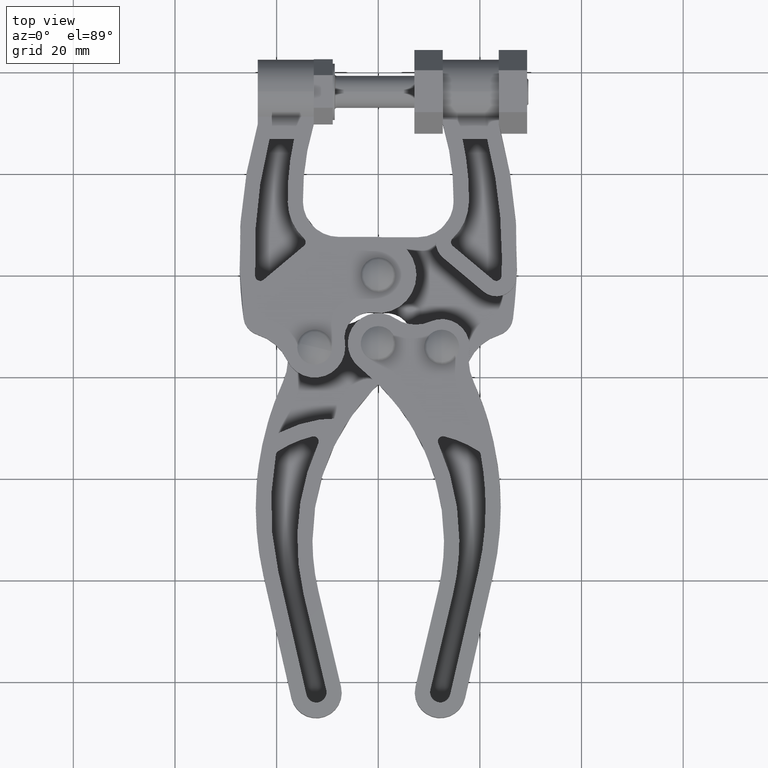
[diagram: clean part render]
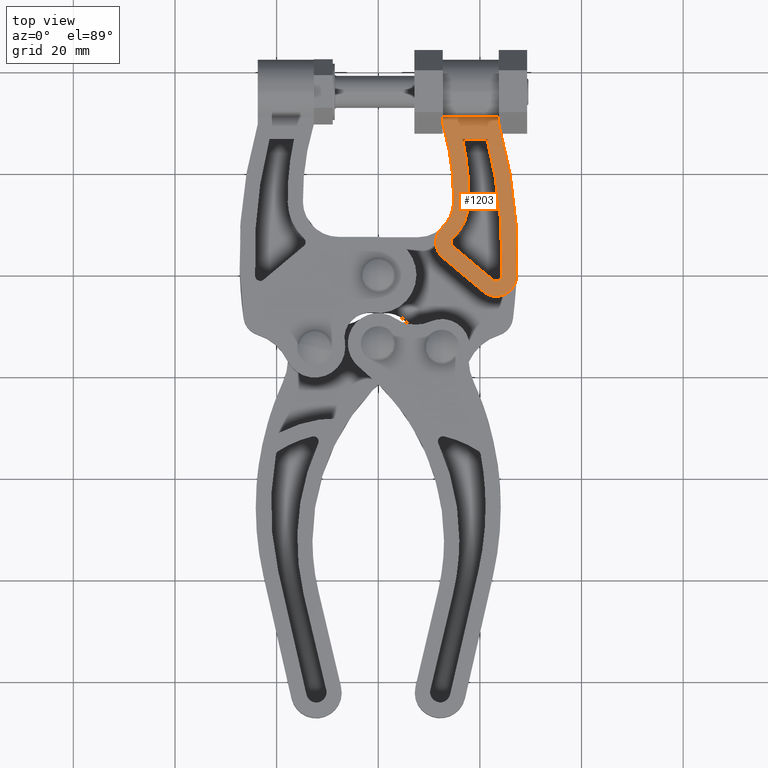
[diagram: same view with one face highlighted and labeled with its STEP entity id]
A machine part, top view. The second image highlights one B-rep face of the part: STEP entity #1203.
In plain terms, the highlighted planar face has unit normal (0, 0, 1).
Its self-contained STEP definition (entity closure, byte-faithful):
#196 = EDGE_CURVE ( 'NONE', #7502, #6575, #1760, .T. ) ;
#266 = CARTESIAN_POINT ( 'NONE',  ( 21.40435118229978800, 26.74999999999995400, 3.999999999999999100 ) ) ;
#352 = CARTESIAN_POINT ( 'NONE',  ( 23.69999999999999200, 31.08876262785325300, 3.999999999999997300 ) ) ;
#413 = CARTESIAN_POINT ( 'NONE',  ( 11.31204259089657600, 6.440179709279433100, 3.999999999999999100 ) ) ;
#433 = AXIS2_PLACEMENT_3D ( 'NONE', #1792, #3132, #3778 ) ;
#591 = DIRECTION ( 'NONE',  ( -0.0000000000000000000, -0.0000000000000000000, -1.000000000000000000 ) ) ;
#690 = VERTEX_POINT ( 'NONE', #1471 ) ;
#767 = DIRECTION ( 'NONE',  ( -0.0000000000000000000, 0.0000000000000000000, 1.000000000000000000 ) ) ;
#770 = CARTESIAN_POINT ( 'NONE',  ( 16.58195092157478000, 26.74999999999995400, 3.999999999999999100 ) ) ;
#827 = ORIENTED_EDGE ( 'NONE', *, *, #5734, .F. ) ;
#842 = DIRECTION ( 'NONE',  ( -1.000000000000000000, -0.0000000000000000000, -0.0000000000000000000 ) ) ;
#880 = DIRECTION ( 'NONE',  ( -0.0000000000000000000, -0.0000000000000000000, -1.000000000000000000 ) ) ;
#919 = CARTESIAN_POINT ( 'NONE',  ( 12.69999999999999600, 30.11010642721110700, 3.999999999999999100 ) ) ;
#928 = AXIS2_PLACEMENT_3D ( 'NONE', #6482, #2465, #7155 ) ;
#974 = DIRECTION ( 'NONE',  ( 1.000000000000000000, 0.0000000000000000000, 0.0000000000000000000 ) ) ;
#1047 = CARTESIAN_POINT ( 'NONE',  ( 39.12898240549357400, -18.76623486224927000, 3.999999999999999100 ) ) ;
#1088 = LINE ( 'NONE', #1047, #4835 ) ;
#1179 = EDGE_CURVE ( 'NONE', #1793, #3804, #1958, .T. ) ;
#1201 = AXIS2_PLACEMENT_3D ( 'NONE', #1517, #1533, #7670 ) ;
#1203 = ADVANCED_FACE ( 'NONE', ( #1754, #5092 ), #2249, .T. ) ;
#1260 = VERTEX_POINT ( 'NONE', #6022 ) ;
#1265 = CIRCLE ( 'NONE', #2156, 10.00000000000000200 ) ;
#1267 = AXIS2_PLACEMENT_3D ( 'NONE', #7608, #1620, #1596 ) ;
#1287 = VERTEX_POINT ( 'NONE', #8198 ) ;
#1295 = DIRECTION ( 'NONE',  ( -0.0000000000000000000, -1.000000000000000000, -0.0000000000000000000 ) ) ;
#1343 = CARTESIAN_POINT ( 'NONE',  ( -67.70000000000001700, 3.799999999999989200, 3.999999999999999100 ) ) ;
#1348 = EDGE_CURVE ( 'NONE', #1260, #6063, #6768, .T. ) ;
#1456 = ORIENTED_EDGE ( 'NONE', *, *, #5443, .F. ) ;
#1464 = VERTEX_POINT ( 'NONE', #919 ) ;
#1471 = CARTESIAN_POINT ( 'NONE',  ( 24.22356094238521600, -0.2431229625375671600, 3.999999999999999100 ) ) ;
#1487 = VECTOR ( 'NONE', #4297, 1000.000000000000000 ) ;
#1517 = CARTESIAN_POINT ( 'NONE',  ( -67.70000000000001700, 3.799999999999989200, 3.999999999999999100 ) ) ;
#1533 = DIRECTION ( 'NONE',  ( 0.0000000000000000000, 0.0000000000000000000, 1.000000000000000000 ) ) ;
#1596 = DIRECTION ( 'NONE',  ( 1.000000000000000000, 0.0000000000000000000, -0.0000000000000000000 ) ) ;
#1620 = DIRECTION ( 'NONE',  ( 0.0000000000000000000, 0.0000000000000000000, 1.000000000000000000 ) ) ;
#1678 = EDGE_CURVE ( 'NONE', #6063, #7389, #4443, .T. ) ;
#1684 = EDGE_CURVE ( 'NONE', #5720, #4061, #4222, .T. ) ;
#1708 = ORIENTED_EDGE ( 'NONE', *, *, #1981, .F. ) ;
#1712 = LINE ( 'NONE', #6645, #5055 ) ;
#1747 = VERTEX_POINT ( 'NONE', #2501 ) ;
#1754 = FACE_BOUND ( 'NONE', #8630, .T. ) ;
#1760 = CIRCLE ( 'NONE', #1201, 92.01243339689810300 ) ;
#1792 = CARTESIAN_POINT ( 'NONE',  ( -35.16645485097053800, 15.29999999999998800, 3.999999999999999100 ) ) ;
#1793 = VERTEX_POINT ( 'NONE', #2418 ) ;
#1799 = ORIENTED_EDGE ( 'NONE', *, *, #4300, .T. ) ;
#1849 = DIRECTION ( 'NONE',  ( -0.0000000000000000000, -0.0000000000000000000, -1.000000000000000000 ) ) ;
#1924 = CARTESIAN_POINT ( 'NONE',  ( 21.40435118229978800, 26.74999999999995400, 3.999999999999999100 ) ) ;
#1958 = CIRCLE ( 'NONE', #6804, 4.000000000000000000 ) ;
#1981 = EDGE_CURVE ( 'NONE', #8073, #3063, #5072, .T. ) ;
#1994 = AXIS2_PLACEMENT_3D ( 'NONE', #6742, #2742, #7407 ) ;
#2015 = DIRECTION ( 'NONE',  ( 1.000000000000000000, 0.0000000000000000000, 0.0000000000000000000 ) ) ;
#2095 = ORIENTED_EDGE ( 'NONE', *, *, #196, .F. ) ;
#2137 = DIRECTION ( 'NONE',  ( 0.0000000000000000000, 0.0000000000000000000, 1.000000000000000000 ) ) ;
#2156 = AXIS2_PLACEMENT_3D ( 'NONE', #2354, #7048, #3037 ) ;
#2203 = CIRCLE ( 'NONE', #928, 95.01243339689810300 ) ;
#2209 = VERTEX_POINT ( 'NONE', #5721 ) ;
#2249 = PLANE ( 'NONE',  #1267 ) ;
#2261 = EDGE_CURVE ( 'NONE', #4334, #1287, #5474, .T. ) ;
#2280 = DIRECTION ( 'NONE',  ( 0.0000000000000000000, 0.0000000000000000000, 1.000000000000000000 ) ) ;
#2309 = LINE ( 'NONE', #1924, #5891 ) ;
#2354 = CARTESIAN_POINT ( 'NONE',  ( 7.826102644484418400, 14.49999999999999100, 3.999999999999999100 ) ) ;
#2377 = CARTESIAN_POINT ( 'NONE',  ( 12.69999999999999600, 31.08876262785325300, 3.999999999999999100 ) ) ;
#2418 = CARTESIAN_POINT ( 'NONE',  ( 12.58988261038306600, 9.371023451359638700, 3.999999999999999100 ) ) ;
#2465 = DIRECTION ( 'NONE',  ( 0.0000000000000000000, 0.0000000000000000000, 1.000000000000000000 ) ) ;
#2466 = VECTOR ( 'NONE', #4589, 1000.000000000000000 ) ;
#2501 = CARTESIAN_POINT ( 'NONE',  ( 17.82437182947394700, 14.31395348837207800, 3.999999999999999100 ) ) ;
#2636 = VERTEX_POINT ( 'NONE', #3629 ) ;
#2679 = DIRECTION ( 'NONE',  ( -0.0000000000000000000, -1.000000000000000000, -0.0000000000000000000 ) ) ;
#2680 = VECTOR ( 'NONE', #3929, 1000.000000000000100 ) ;
#2742 = DIRECTION ( 'NONE',  ( 0.0000000000000000000, 0.0000000000000000000, 1.000000000000000000 ) ) ;
#2965 = CARTESIAN_POINT ( 'NONE',  ( 15.31204259089657600, 6.440179709279433100, 3.999999999999999100 ) ) ;
#3025 = CARTESIAN_POINT ( 'NONE',  ( 14.66925498121004300, 5.674135266160449800, 3.999999999999999100 ) ) ;
#3030 = DIRECTION ( 'NONE',  ( 0.7660444431189813400, -0.6427876096865353700, 0.0000000000000000000 ) ) ;
#3037 = DIRECTION ( 'NONE',  ( 1.000000000000000000, 0.0000000000000000000, 0.0000000000000000000 ) ) ;
#3063 = VERTEX_POINT ( 'NONE', #7238 ) ;
#3106 = ORIENTED_EDGE ( 'NONE', *, *, #4570, .F. ) ;
#3132 = DIRECTION ( 'NONE',  ( -0.0000000000000000000, -0.0000000000000000000, -1.000000000000000000 ) ) ;
#3263 = LINE ( 'NONE', #6309, #1487 ) ;
#3421 = ORIENTED_EDGE ( 'NONE', *, *, #1678, .F. ) ;
#3629 = CARTESIAN_POINT ( 'NONE',  ( 20.65337633672607600, -3.263360624169908200, 3.999999999999999100 ) ) ;
#3714 = EDGE_CURVE ( 'NONE', #1287, #1793, #4703, .T. ) ;
#3771 = AXIS2_PLACEMENT_3D ( 'NONE', #6150, #2137, #6827 ) ;
#3777 = EDGE_CURVE ( 'NONE', #7389, #690, #6074, .T. ) ;
#3778 = DIRECTION ( 'NONE',  ( 1.000000000000000000, 0.0000000000000000000, 0.0000000000000000000 ) ) ;
#3804 = VERTEX_POINT ( 'NONE', #413 ) ;
#3901 = CARTESIAN_POINT ( 'NONE',  ( 23.69999999999999200, 42.45099999999999300, 3.999999999999999100 ) ) ;
#3929 = DIRECTION ( 'NONE',  ( 0.7660444431189812300, -0.6427876096865353700, 0.0000000000000000000 ) ) ;
#3930 = ORIENTED_EDGE ( 'NONE', *, *, #1348, .F. ) ;
#4061 = VERTEX_POINT ( 'NONE', #8581 ) ;
#4139 = ORIENTED_EDGE ( 'NONE', *, *, #5748, .T. ) ;
#4222 = LINE ( 'NONE', #3901, #2466 ) ;
#4278 = ORIENTED_EDGE ( 'NONE', *, *, #4471, .T. ) ;
#4297 = DIRECTION ( 'NONE',  ( -0.0000000000000000000, -1.000000000000000000, -0.0000000000000000000 ) ) ;
#4300 = EDGE_CURVE ( 'NONE', #7735, #1464, #3263, .T. ) ;
#4334 = VERTEX_POINT ( 'NONE', #8318 ) ;
#4396 = CIRCLE ( 'NONE', #3771, 4.000000000000000000 ) ;
#4443 = LINE ( 'NONE', #4623, #2680 ) ;
#4471 = EDGE_CURVE ( 'NONE', #2209, #4061, #2203, .T. ) ;
#4493 = CARTESIAN_POINT ( 'NONE',  ( -35.16645485097053800, 15.29999999999998800, 3.999999999999999100 ) ) ;
#4495 = LINE ( 'NONE', #4846, #6080 ) ;
#4570 = EDGE_CURVE ( 'NONE', #3063, #1747, #7862, .T. ) ;
#4589 = DIRECTION ( 'NONE',  ( -0.0000000000000000000, -1.000000000000000000, -0.0000000000000000000 ) ) ;
#4594 = CARTESIAN_POINT ( 'NONE',  ( -35.16645485097053800, 15.29999999999998800, 3.999999999999999100 ) ) ;
#4623 = CARTESIAN_POINT ( 'NONE',  ( 14.66925498121004300, 5.674135266160449800, 3.999999999999999100 ) ) ;
#4664 = CARTESIAN_POINT ( 'NONE',  ( 22.58173916578568100, -0.9652272948129595500, 3.999999999999999100 ) ) ;
#4684 = AXIS2_PLACEMENT_3D ( 'NONE', #1343, #6026, #2015 ) ;
#4695 = EDGE_CURVE ( 'NONE', #2636, #2209, #7532, .T. ) ;
#4703 = CIRCLE ( 'NONE', #4919, 7.000000000000000900 ) ;
#4765 = CARTESIAN_POINT ( 'NONE',  ( 23.22452677547221700, -0.1991828516939783700, 3.999999999999999100 ) ) ;
#4795 = ORIENTED_EDGE ( 'NONE', *, *, #1179, .T. ) ;
#4835 = VECTOR ( 'NONE', #3030, 1000.000000000000000 ) ;
#4846 = CARTESIAN_POINT ( 'NONE',  ( -0.03648441340261057700, 31.08876262785325300, 3.999999999999999100 ) ) ;
#4867 = ORIENTED_EDGE ( 'NONE', *, *, #4695, .T. ) ;
#4872 = ORIENTED_EDGE ( 'NONE', *, *, #1684, .F. ) ;
#4875 = EDGE_LOOP ( 'NONE', ( #5113, #4795, #6229, #6383, #4867, #4278, #4872, #6964, #5292, #1799, #4139, #5997 ) ) ;
#4919 = AXIS2_PLACEMENT_3D ( 'NONE', #5641, #880, #974 ) ;
#5012 = VECTOR ( 'NONE', #2679, 1000.000000000000000 ) ;
#5055 = VECTOR ( 'NONE', #1295, 1000.000000000000000 ) ;
#5072 = CIRCLE ( 'NONE', #7936, 53.00000000000000700 ) ;
#5092 = FACE_OUTER_BOUND ( 'NONE', #4875, .T. ) ;
#5113 = ORIENTED_EDGE ( 'NONE', *, *, #3714, .T. ) ;
#5223 = CIRCLE ( 'NONE', #4684, 92.01243339689810300 ) ;
#5276 = DIRECTION ( 'NONE',  ( 1.000000000000000000, 0.0000000000000000000, 0.0000000000000000000 ) ) ;
#5292 = ORIENTED_EDGE ( 'NONE', *, *, #5311, .T. ) ;
#5311 = EDGE_CURVE ( 'NONE', #5442, #7735, #4495, .T. ) ;
#5338 = CARTESIAN_POINT ( 'NONE',  ( 12.69999999999999600, 42.45099999999999300, 3.999999999999999100 ) ) ;
#5441 = DIRECTION ( 'NONE',  ( 1.000000000000000000, 0.0000000000000000000, 0.0000000000000000000 ) ) ;
#5442 = VERTEX_POINT ( 'NONE', #352 ) ;
#5443 = EDGE_CURVE ( 'NONE', #1747, #1260, #1265, .T. ) ;
#5474 = CIRCLE ( 'NONE', #433, 50.00000000000000000 ) ;
#5481 = CARTESIAN_POINT ( 'NONE',  ( 24.31243339689809300, 3.799999999999989200, 3.999999999999999100 ) ) ;
#5594 = DIRECTION ( 'NONE',  ( 1.000000000000000000, 0.0000000000000000000, 0.0000000000000000000 ) ) ;
#5641 = CARTESIAN_POINT ( 'NONE',  ( 7.826102644484418400, 14.49999999999999100, 3.999999999999999100 ) ) ;
#5676 = CARTESIAN_POINT ( 'NONE',  ( 23.22452677547221700, -0.1991828516939783700, 3.999999999999999100 ) ) ;
#5698 = ORIENTED_EDGE ( 'NONE', *, *, #3777, .F. ) ;
#5720 = VERTEX_POINT ( 'NONE', #7331 ) ;
#5721 = CARTESIAN_POINT ( 'NONE',  ( 27.22066327602935900, -0.3749470941136323100, 4.000000000000000000 ) ) ;
#5734 = EDGE_CURVE ( 'NONE', #690, #7502, #5223, .T. ) ;
#5748 = EDGE_CURVE ( 'NONE', #1464, #4334, #6796, .T. ) ;
#5830 = AXIS2_PLACEMENT_3D ( 'NONE', #5676, #6965, #6064 ) ;
#5891 = VECTOR ( 'NONE', #6603, 1000.000000000000000 ) ;
#5997 = ORIENTED_EDGE ( 'NONE', *, *, #2261, .T. ) ;
#6022 = CARTESIAN_POINT ( 'NONE',  ( 14.63150259576820000, 7.172890644799483800, 3.999999999999999100 ) ) ;
#6026 = DIRECTION ( 'NONE',  ( 0.0000000000000000000, 0.0000000000000000000, 1.000000000000000000 ) ) ;
#6063 = VERTEX_POINT ( 'NONE', #3025 ) ;
#6064 = DIRECTION ( 'NONE',  ( 1.000000000000000000, 0.0000000000000000000, 0.0000000000000000000 ) ) ;
#6074 = CIRCLE ( 'NONE', #5830, 1.000000000000125700 ) ;
#6080 = VECTOR ( 'NONE', #842, 1000.000000000000000 ) ;
#6150 = CARTESIAN_POINT ( 'NONE',  ( 15.31204259089657600, 6.440179709279433100, 3.999999999999999100 ) ) ;
#6161 = VERTEX_POINT ( 'NONE', #6481 ) ;
#6229 = ORIENTED_EDGE ( 'NONE', *, *, #8112, .T. ) ;
#6305 = DIRECTION ( 'NONE',  ( 1.000000000000000000, 0.0000000000000000000, 0.0000000000000000000 ) ) ;
#6309 = CARTESIAN_POINT ( 'NONE',  ( 12.69999999999999600, 42.45099999999999300, 3.999999999999999100 ) ) ;
#6383 = ORIENTED_EDGE ( 'NONE', *, *, #7719, .T. ) ;
#6481 = CARTESIAN_POINT ( 'NONE',  ( 12.74089215215042800, 3.376001936803508100, 3.999999999999999100 ) ) ;
#6482 = CARTESIAN_POINT ( 'NONE',  ( -67.70000000000001700, 3.799999999999989200, 3.999999999999999100 ) ) ;
#6575 = VERTEX_POINT ( 'NONE', #266 ) ;
#6603 = DIRECTION ( 'NONE',  ( -1.000000000000000000, 0.0000000000000000000, 0.0000000000000000000 ) ) ;
#6645 = CARTESIAN_POINT ( 'NONE',  ( 23.69999999999999200, 42.45099999999999300, 3.999999999999999100 ) ) ;
#6742 = CARTESIAN_POINT ( 'NONE',  ( 15.31204259089657800, 6.440179709279433100, 3.999999999999999100 ) ) ;
#6768 = CIRCLE ( 'NONE', #1994, 0.9999999999999991100 ) ;
#6796 = LINE ( 'NONE', #5338, #5012 ) ;
#6804 = AXIS2_PLACEMENT_3D ( 'NONE', #2965, #2280, #6305 ) ;
#6827 = DIRECTION ( 'NONE',  ( 1.000000000000000000, 0.0000000000000000000, 0.0000000000000000000 ) ) ;
#6964 = ORIENTED_EDGE ( 'NONE', *, *, #7348, .F. ) ;
#6965 = DIRECTION ( 'NONE',  ( 0.0000000000000000000, 0.0000000000000000000, 1.000000000000000000 ) ) ;
#7044 = AXIS2_PLACEMENT_3D ( 'NONE', #4765, #767, #5441 ) ;
#7048 = DIRECTION ( 'NONE',  ( -0.0000000000000000000, -0.0000000000000000000, -1.000000000000000000 ) ) ;
#7155 = DIRECTION ( 'NONE',  ( 1.000000000000000000, 0.0000000000000000000, 0.0000000000000000000 ) ) ;
#7238 = CARTESIAN_POINT ( 'NONE',  ( 17.83354514902946900, 15.29999999999998800, 3.999999999999999100 ) ) ;
#7331 = CARTESIAN_POINT ( 'NONE',  ( 23.69999999999999200, 30.11010642721140200, 3.999999999999999100 ) ) ;
#7348 = EDGE_CURVE ( 'NONE', #5442, #5720, #1712, .T. ) ;
#7389 = VERTEX_POINT ( 'NONE', #4664 ) ;
#7407 = DIRECTION ( 'NONE',  ( 1.000000000000000000, 0.0000000000000000000, 0.0000000000000000000 ) ) ;
#7502 = VERTEX_POINT ( 'NONE', #5481 ) ;
#7532 = CIRCLE ( 'NONE', #7044, 4.000000000000031100 ) ;
#7608 = CARTESIAN_POINT ( 'NONE',  ( -5.204170427930421300E-015, -1.040834085586084300E-014, 3.999999999999999100 ) ) ;
#7670 = DIRECTION ( 'NONE',  ( 1.000000000000000000, 0.0000000000000000000, 0.0000000000000000000 ) ) ;
#7719 = EDGE_CURVE ( 'NONE', #6161, #2636, #1088, .T. ) ;
#7735 = VERTEX_POINT ( 'NONE', #2377 ) ;
#7862 = CIRCLE ( 'NONE', #8544, 53.00000000000000700 ) ;
#7867 = EDGE_CURVE ( 'NONE', #6575, #8073, #2309, .T. ) ;
#7925 = ORIENTED_EDGE ( 'NONE', *, *, #7867, .F. ) ;
#7936 = AXIS2_PLACEMENT_3D ( 'NONE', #4493, #1849, #5594 ) ;
#8073 = VERTEX_POINT ( 'NONE', #770 ) ;
#8112 = EDGE_CURVE ( 'NONE', #3804, #6161, #4396, .T. ) ;
#8198 = CARTESIAN_POINT ( 'NONE',  ( 14.82489107397708700, 14.36976744186045200, 3.999999999999999100 ) ) ;
#8318 = CARTESIAN_POINT ( 'NONE',  ( 12.69999999999999600, 29.74999999999998600, 3.999999999999999100 ) ) ;
#8544 = AXIS2_PLACEMENT_3D ( 'NONE', #4594, #591, #5276 ) ;
#8581 = CARTESIAN_POINT ( 'NONE',  ( 23.69999999999999200, 29.74999999999998600, 3.999999999999999100 ) ) ;
#8630 = EDGE_LOOP ( 'NONE', ( #5698, #3421, #3930, #1456, #3106, #1708, #7925, #2095, #827 ) ) ;